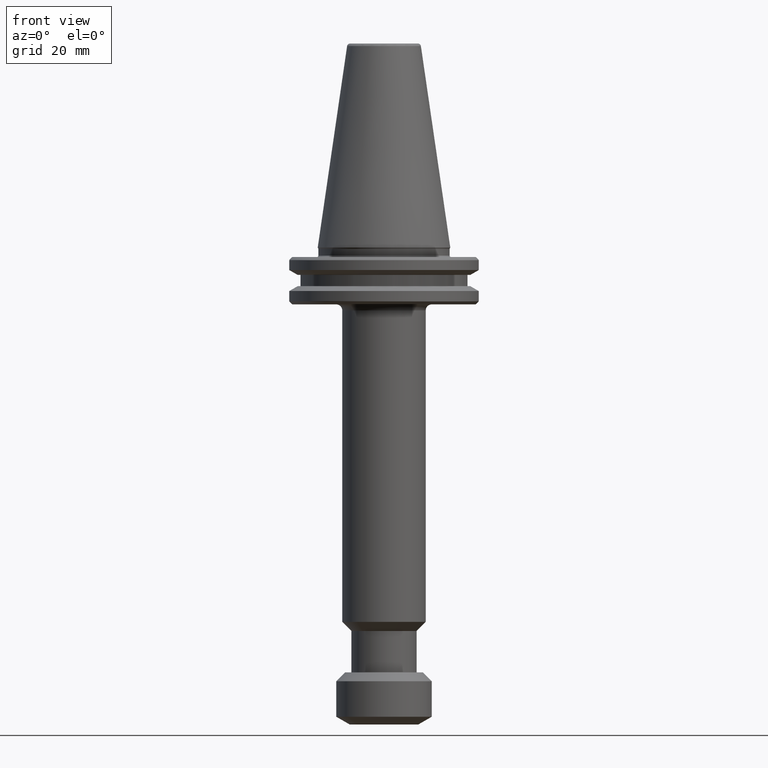
[diagram: clean part render]
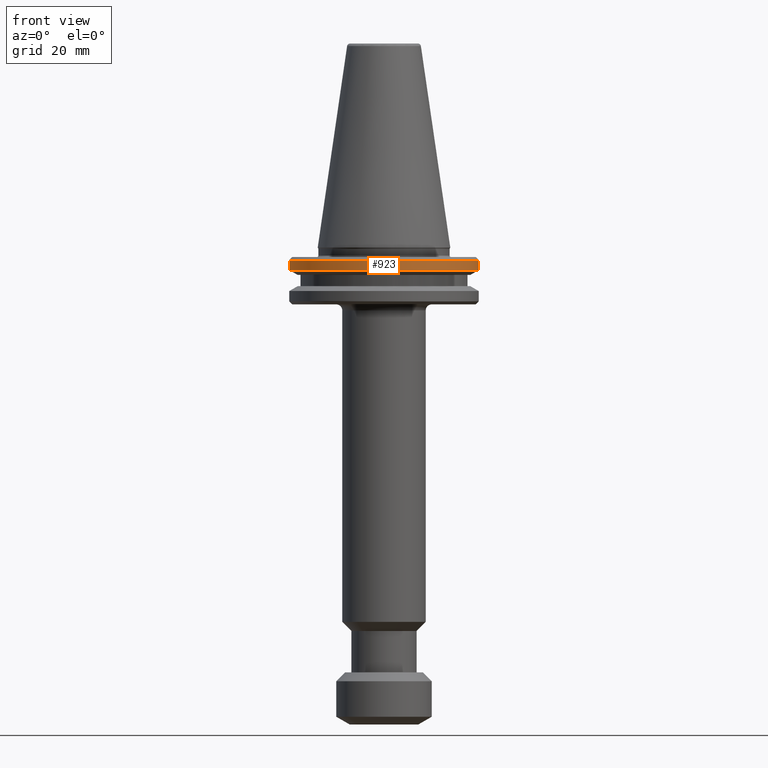
[diagram: same view with one face highlighted and labeled with its STEP entity id]
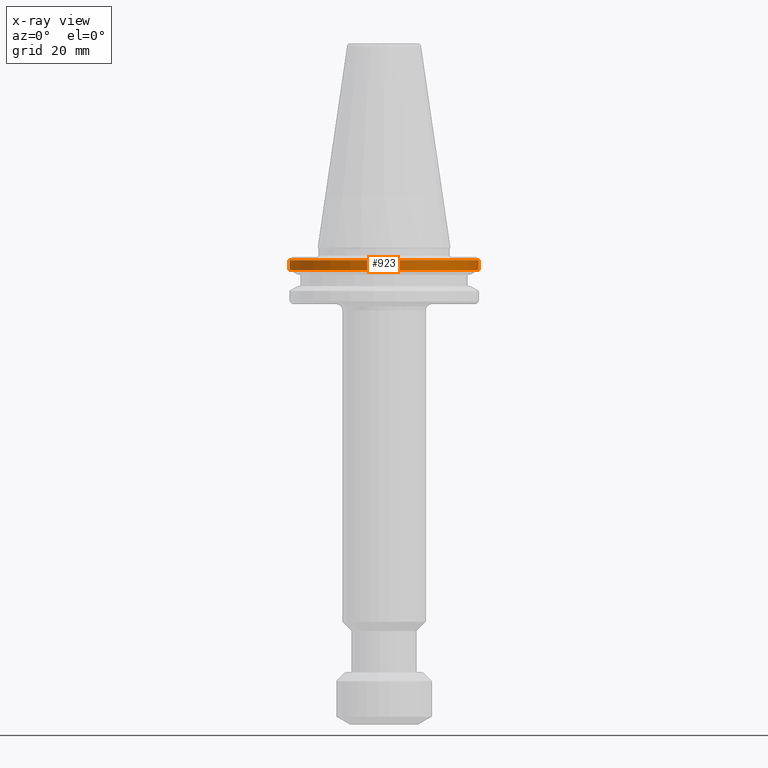
[diagram: x-ray of the same camera — body ghosted, the highlighted face saturated]
A machine part, front view. The second image highlights one B-rep face of the part: STEP entity #923.
The next image is the same camera in x-ray: the body ghosted, the highlighted face saturated — about 0% of this face is hidden behind the body in this view.
In plain terms, the highlighted cylindrical surface (partial cylindrical patch) has radius 31.77 mm, axis along (-0, -0, 1).
Its self-contained STEP definition (entity closure, byte-faithful):
#117 = AXIS2_PLACEMENT_3D ( 'NONE', #601, #950, #880 ) ;
#134 = AXIS2_PLACEMENT_3D ( 'NONE', #422, #645, #794 ) ;
#172 = DIRECTION ( 'NONE',  ( -0.0000000000000000000, -0.0000000000000000000, 1.000000000000000000 ) ) ;
#210 = CARTESIAN_POINT ( 'NONE',  ( -31.77000000111166500, 3.890702881027281700E-015, -7.583936862974580300 ) ) ;
#279 = DIRECTION ( 'NONE',  ( 1.000000000000000000, 0.0000000000000000000, 0.0000000000000000000 ) ) ;
#328 = VERTEX_POINT ( 'NONE', #940 ) ;
#361 = VECTOR ( 'NONE', #929, 1000.000000000000000 ) ;
#422 = CARTESIAN_POINT ( 'NONE',  ( 0.0000000000000000000, 0.0000000000000000000, -7.583936862974580300 ) ) ;
#458 = VERTEX_POINT ( 'NONE', #210 ) ;
#601 = CARTESIAN_POINT ( 'NONE',  ( 0.0000000000000000000, 0.0000000000000000000, -4.365685423910481000 ) ) ;
#640 = LINE ( 'NONE', #865, #956 ) ;
#645 = DIRECTION ( 'NONE',  ( -0.0000000000000000000, -0.0000000000000000000, 1.000000000000000000 ) ) ;
#651 = CARTESIAN_POINT ( 'NONE',  ( 31.77000000111166500, 0.0000000000000000000, 15.73615212341877100 ) ) ;
#662 = ORIENTED_EDGE ( 'NONE', *, *, #733, .F. ) ;
#691 = ORIENTED_EDGE ( 'NONE', *, *, #1412, .T. ) ;
#733 = EDGE_CURVE ( 'NONE', #458, #328, #640, .T. ) ;
#768 = ORIENTED_EDGE ( 'NONE', *, *, #1343, .T. ) ;
#794 = DIRECTION ( 'NONE',  ( 1.000000000000000000, 0.0000000000000000000, 0.0000000000000000000 ) ) ;
#802 = CYLINDRICAL_SURFACE ( 'NONE', #968, 31.77000000111166500 ) ;
#847 = EDGE_CURVE ( 'NONE', #328, #1511, #1231, .T. ) ;
#851 = CARTESIAN_POINT ( 'NONE',  ( 0.0000000000000000000, 0.0000000000000000000, 15.73615212341877100 ) ) ;
#865 = CARTESIAN_POINT ( 'NONE',  ( -31.77000000111166500, 3.890702881027281700E-015, 15.73615212341877100 ) ) ;
#880 = DIRECTION ( 'NONE',  ( 1.000000000000000000, 0.0000000000000000000, 0.0000000000000000000 ) ) ;
#898 = VERTEX_POINT ( 'NONE', #1038 ) ;
#923 = ADVANCED_FACE ( 'NONE', ( #1282 ), #802, .T. ) ;
#929 = DIRECTION ( 'NONE',  ( -0.0000000000000000000, -0.0000000000000000000, 1.000000000000000000 ) ) ;
#940 = CARTESIAN_POINT ( 'NONE',  ( -31.77000000111166500, 3.890702881027281700E-015, -4.365685423910481000 ) ) ;
#950 = DIRECTION ( 'NONE',  ( -0.0000000000000000000, -0.0000000000000000000, 1.000000000000000000 ) ) ;
#956 = VECTOR ( 'NONE', #172, 1000.000000000000000 ) ;
#968 = AXIS2_PLACEMENT_3D ( 'NONE', #851, #1350, #279 ) ;
#1027 = CIRCLE ( 'NONE', #134, 31.77000000111166500 ) ;
#1038 = CARTESIAN_POINT ( 'NONE',  ( 31.77000000111166500, 0.0000000000000000000, -7.583936862974580300 ) ) ;
#1129 = CARTESIAN_POINT ( 'NONE',  ( 31.77000000111166500, 0.0000000000000000000, -4.365685423910481000 ) ) ;
#1231 = CIRCLE ( 'NONE', #117, 31.77000000111166500 ) ;
#1282 = FACE_OUTER_BOUND ( 'NONE', #1441, .T. ) ;
#1301 = LINE ( 'NONE', #651, #361 ) ;
#1343 = EDGE_CURVE ( 'NONE', #458, #898, #1027, .T. ) ;
#1350 = DIRECTION ( 'NONE',  ( -0.0000000000000000000, -0.0000000000000000000, 1.000000000000000000 ) ) ;
#1412 = EDGE_CURVE ( 'NONE', #898, #1511, #1301, .T. ) ;
#1441 = EDGE_LOOP ( 'NONE', ( #662, #768, #691, #1531 ) ) ;
#1511 = VERTEX_POINT ( 'NONE', #1129 ) ;
#1531 = ORIENTED_EDGE ( 'NONE', *, *, #847, .F. ) ;